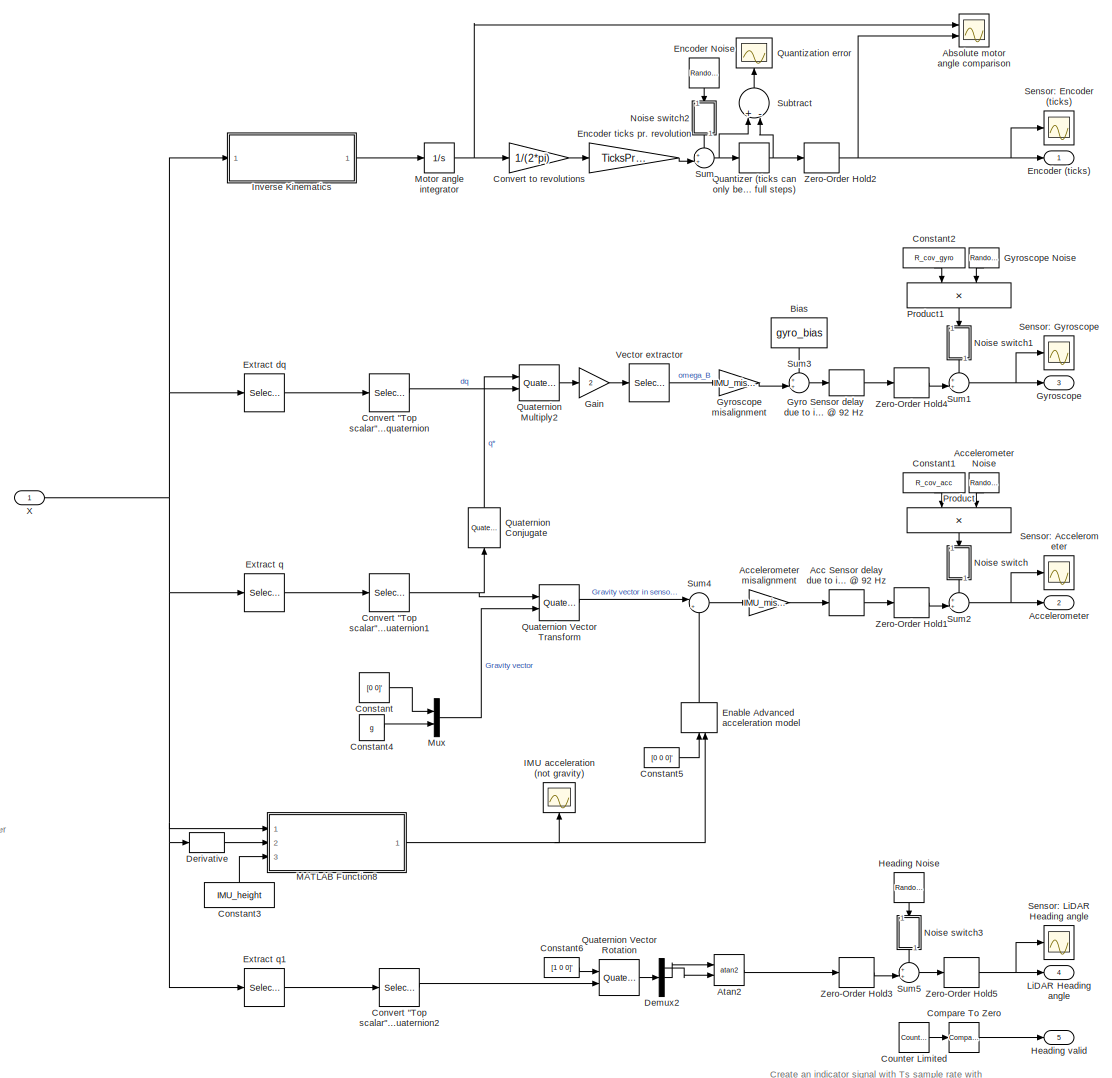
[diagram: root canvas - part 1/3, most of the canvas]
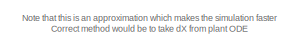
[diagram: root canvas - part 2/3, bottom left region]
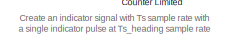
[diagram: root canvas - part 3/3, bottom right region]
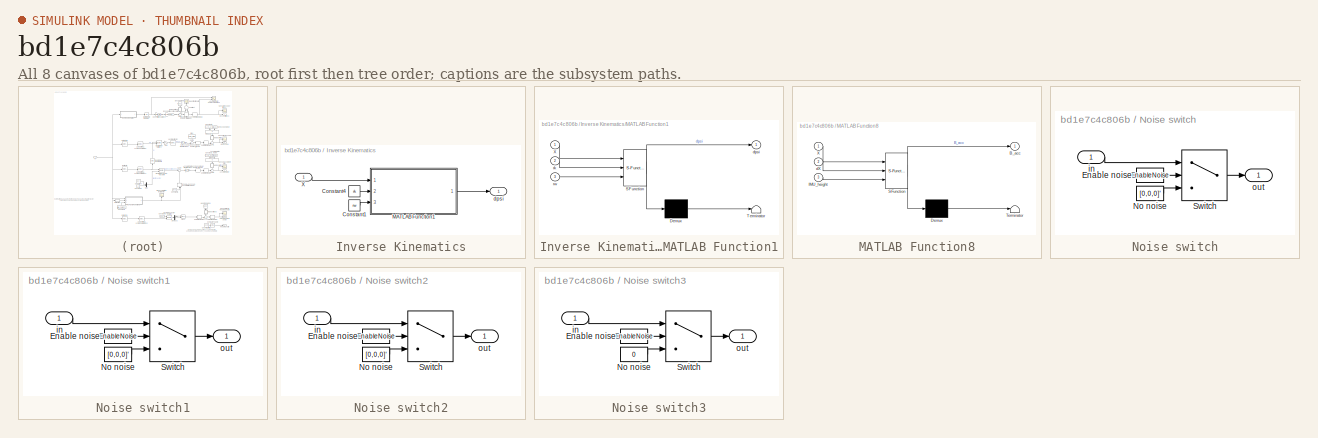
[diagram: thumbnail index - all 8 canvases of the model, root first then tree order]
MODEL slx_bd1e7c4c806b
KIND model
CONFIG AbsTol = auto
CONFIG EnableMultiTasking = off
CONFIG FixedStep = auto
CONFIG InitFcn = Constants_Kugle\nParameters_Simulation
CONFIG MaxStep = auto
CONFIG MinStep = auto
CONFIG PreLoadFcn = modelDir = fileparts(get_param(bdroot, 'FileName'));\naddpath(fullfile(modelDir,'../../Parameters'));\naddpath(fullfile(modelDir,'../../Model/generated'));\n\nConstants_Kugle\nParameters_Simulation
CONFIG RelTol = 1e-3
CONFIG SampleTimeConstraint = Unconstrained
CONFIG Solver = VariableStepAuto
CONFIG SolverName = VariableStepAuto
CONFIG StartTime = 0.0
CONFIG StopTime = 10.0
BLOCK [Scope] Absolute motor angle comparison
  Floating = off
  NumInputPorts = 2
  Ports = [2]
  ScopeSpecificationString = Simulink.scopes.TimeScopeBlockCfg('CurrentConfiguration', extmgr.ConfigurationSet(extmgr.Configuration('Core','General UI',true),extmgr.Configuration('Core','Source UI',true),extmgr.Configuration('Sources','WiredSimulink',true,'DataLoggingVariableName','ScopeData1'),extmgr.Configuration('Visuals','Time Domain',true,'SerializedDisplays',{struct('MinYLimReal','-79.7903','MaxYLimReal','66.0325','YLab...<+2559ch>
BLOCK [TransportDelay] Acc Sensor delay due to internal LPF @ 92 Hz
  Commented = through
  DelayTime = 7.8e-3
  InitialOutput = [0,0,g]'
  Ports = [1, 1]
BLOCK [Outport] Accelerometer
  IconDisplay = Port number
  Port = 2
BLOCK [RandomNumber] Accelerometer Noise
  Mean = [0,0,0]'
  SampleTime = Ts
  Seed = [31 20 16]'
  Variance = [1,1,1]'
BLOCK [Gain] Accelerometer misalignment
  Gain = IMU_misalignment
  Multiplication = Matrix(K*u)
  OutDataTypeStr = Inherit: Inherit via internal rule
  ParamDataTypeStr = Inherit: Inherit via internal rule
  SaturateOnIntegerOverflow = off
BLOCK [Trigonometry] Atan2
  Operator = atan2
  Ports = [2, 1]
BLOCK [Constant] Bias
  Value = gyro_bias
BLOCK [Reference] Compare To Zero  REF=simulink/Logic and Bit
Operations/Compare
To Zero
  Ports = [1, 1]
  SourceBlock = simulink/Logic and Bit\nOperations/Compare\nTo Zero
  SourceProductBaseCode = SL
  SourceProductName = Simulink
  SourceType = Compare To Zero
BLOCK [Constant] Constant
  Value = [0 0]'
BLOCK [Constant] Constant1
  Value = R_cov_acc
BLOCK [Constant] Constant2
  Value = R_cov_gyro
BLOCK [Constant] Constant3
  Value = IMU_height
BLOCK [Constant] Constant4
  Value = g
BLOCK [Constant] Constant5
  Value = [0 0 0]'
BLOCK [Constant] Constant6
  Value = [1 0 0]'
BLOCK [Selector] Convert "Top scalar" quaternion to "Bottom scalar" quaternion
  IndexOptions = Index vector (dialog)
  Indices = [2 3 4 1]
  InputPortWidth = 4
  OutputSizes = 1
  Ports = [1, 1]
BLOCK [Selector] Convert "Top scalar" quaternion to "Bottom scalar" quaternion1
  IndexOptions = Index vector (dialog)
  Indices = [2 3 4 1]
  InputPortWidth = 4
  OutputSizes = 1
  Ports = [1, 1]
BLOCK [Selector] Convert "Top scalar" quaternion to "Bottom scalar" quaternion2
  IndexOptions = Index vector (dialog)
  Indices = [2 3 4 1]
  InputPortWidth = 4
  OutputSizes = 1
  Ports = [1, 1]
BLOCK [Gain] Convert to revolutions
  Gain = 1/(2*pi)
  OutDataTypeStr = Inherit: Inherit via internal rule
  ParamDataTypeStr = Inherit: Inherit via internal rule
  SaturateOnIntegerOverflow = off
BLOCK [Reference] Counter Limited  REF=simulink/Sources/Counter
Limited
  Ports = [0, 1]
  SourceBlock = simulink/Sources/Counter\nLimited
  SourceProductBaseCode = SL
  SourceProductName = Simulink
  SourceType = Counter Limited
BLOCK [Demux] Demux2
  DisplayOption = bar
  Outputs = 3
  Ports = [1, 3]
BLOCK [Derivative] Derivative
BLOCK [ManualSwitch] Enable Advanced acceleration model
BLOCK [Outport] Encoder (ticks)
  IconDisplay = Port number
BLOCK [RandomNumber] Encoder Noise
  Mean = [0,0,0]'
  SampleTime = Ts
  Seed = [81 9 5]'
  Variance = [sensor_sigma2_encoder, sensor_sigma2_encoder, sensor_sigma2_encoder]'
BLOCK [Gain] Encoder ticks pr. revolution
  Gain = TicksPrRev
  OutDataTypeStr = Inherit: Inherit via internal rule
  ParamDataTypeStr = Inherit: Inherit via internal rule
  SaturateOnIntegerOverflow = off
BLOCK [Selector] Extract dq
  IndexOptions = Index vector (dialog)
  Indices = [9 10 11 12]
  InputPortWidth = 12
  OutputSizes = 1
  Ports = [1, 1]
BLOCK [Selector] Extract q
  IndexOptions = Index vector (dialog)
  Indices = [3 4 5 6]
  InputPortWidth = 12
  OutputSizes = 1
  Ports = [1, 1]
BLOCK [Selector] Extract q1
  IndexOptions = Index vector (dialog)
  Indices = [3 4 5 6]
  InputPortWidth = 12
  OutputSizes = 1
  Ports = [1, 1]
BLOCK [Gain] Gain
  Gain = 2
  OutDataTypeStr = Inherit: Inherit via internal rule
  ParamDataTypeStr = Inherit: Inherit via internal rule
  SaturateOnIntegerOverflow = off
BLOCK [TransportDelay] Gyro Sensor delay due to internal LPF @ 92 Hz
  Commented = through
  DelayTime = 3.9e-3
  Ports = [1, 1]
BLOCK [Outport] Gyroscope
  IconDisplay = Port number
  Port = 3
BLOCK [RandomNumber] Gyroscope Noise
  Mean = [0,0,0]'
  SampleTime = Ts
  Seed = [31 20 16]'
  Variance = [1,1,1]'
BLOCK [Gain] Gyroscope misalignment
  Gain = IMU_misalignment
  Multiplication = Matrix(K*u)
  OutDataTypeStr = Inherit: Inherit via internal rule
  ParamDataTypeStr = Inherit: Inherit via internal rule
  SaturateOnIntegerOverflow = off
BLOCK [RandomNumber] Heading Noise
  SampleTime = Ts_heading
  Seed = 19
  Variance = sensor_sigma2_heading
BLOCK [Outport] Heading valid
  IconDisplay = Port number
  Port = 5
BLOCK [Scope] IMU acceleration (not gravity)
  Floating = off
  NumInputPorts = 1
  Ports = [1]
  ScopeSpecificationString = Simulink.scopes.TimeScopeBlockCfg('CurrentConfiguration', extmgr.ConfigurationSet(extmgr.Configuration('Core','General UI',true),extmgr.Configuration('Core','Source UI',true),extmgr.Configuration('Sources','WiredSimulink',true,'DataLoggingVariableName','ScopeData3'),extmgr.Configuration('Visuals','Time Domain',true,'SerializedDisplays',{struct('MinYLimReal','-4.55293','MaxYLimReal','2.93324','YLab...<+1516ch>
BLOCK [SubSystem] Inverse Kinematics
  Ports = [1, 1]
  RequestExecContextInheritance = off
BLOCK [Constant] Inverse Kinematics/Constant1
  Value = rw
BLOCK [Constant] Inverse Kinematics/Constant4
  Value = rk
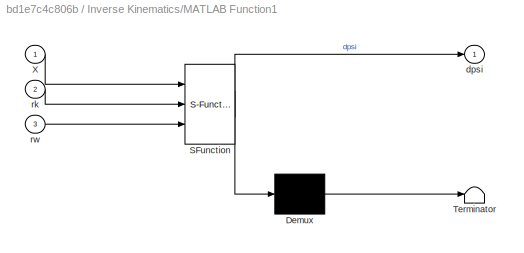
BLOCK [SubSystem] Inverse Kinematics/MATLAB Function1
  ErrorFcn = Stateflow.Translate.translate
  PermitHierarchicalResolution = ExplicitOnly
  Ports = [3, 1]
  RequestExecContextInheritance = off
  SFBlockType = MATLAB Function
  TreatAsAtomicUnit = on
BLOCK [Demux] Inverse Kinematics/MATLAB Function1/ Demux 
  Outputs = 1
  Ports = [1, 1]
BLOCK [S-Function] Inverse Kinematics/MATLAB Function1/ SFunction 
  EnableBusSupport = on
  FunctionName = sf_sfun
  PortCounts = [3 2]
  Ports = [3, 2]
  SFcnIsStateOwnerBlock = off
  SFunctionDeploymentMode = off
  Tag = Stateflow S-Function SensorModels 17
BLOCK [Terminator] Inverse Kinematics/MATLAB Function1/ Terminator 
BLOCK [Inport] Inverse Kinematics/MATLAB Function1/X
  IconDisplay = Port number
BLOCK [Outport] Inverse Kinematics/MATLAB Function1/dpsi
  IconDisplay = Port number
BLOCK [Inport] Inverse Kinematics/MATLAB Function1/rk
  IconDisplay = Port number
  Port = 2
BLOCK [Inport] Inverse Kinematics/MATLAB Function1/rw
  IconDisplay = Port number
  Port = 3
BLOCK [Inport] Inverse Kinematics/X
  IconDisplay = Port number
BLOCK [Outport] Inverse Kinematics/dpsi
  IconDisplay = Port number
BLOCK [Outport] LiDAR Heading angle
  IconDisplay = Port number
  Port = 4
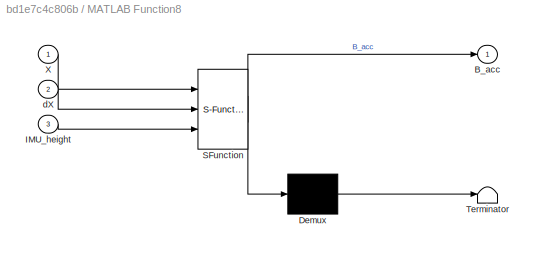
BLOCK [SubSystem] MATLAB Function8
  ErrorFcn = Stateflow.Translate.translate
  PermitHierarchicalResolution = ExplicitOnly
  Ports = [3, 1]
  RequestExecContextInheritance = off
  SFBlockType = MATLAB Function
  TreatAsAtomicUnit = on
BLOCK [Demux] MATLAB Function8/ Demux 
  Outputs = 1
  Ports = [1, 1]
BLOCK [S-Function] MATLAB Function8/ SFunction 
  EnableBusSupport = on
  FunctionName = sf_sfun
  PortCounts = [3 2]
  Ports = [3, 2]
  SFcnIsStateOwnerBlock = off
  SFunctionDeploymentMode = off
  Tag = Stateflow S-Function SensorModels 36
BLOCK [Terminator] MATLAB Function8/ Terminator 
BLOCK [Outport] MATLAB Function8/B_acc
  IconDisplay = Port number
BLOCK [Inport] MATLAB Function8/IMU_height
  IconDisplay = Port number
  Port = 3
BLOCK [Inport] MATLAB Function8/X
  IconDisplay = Port number
BLOCK [Inport] MATLAB Function8/dX
  IconDisplay = Port number
  Port = 2
BLOCK [Integrator] Motor angle integrator
  InitialCondition = [0 0 0]
  Ports = [1, 1]
BLOCK [Mux] Mux
  DisplayOption = bar
  Inputs = 2
  Ports = [2, 1]
BLOCK [SubSystem] Noise switch
  Ports = [1, 1]
  RequestExecContextInheritance = off
BLOCK [Constant] Noise switch/Enable noise
  Value = EnableNoise
BLOCK [Constant] Noise switch/No noise
  Value = [0,0,0]'
BLOCK [Switch] Noise switch/Switch
  Criteria = u2 > Threshold
  InputSameDT = off
  SaturateOnIntegerOverflow = off
BLOCK [Inport] Noise switch/in
  IconDisplay = Port number
BLOCK [Outport] Noise switch/out
  IconDisplay = Port number
BLOCK [SubSystem] Noise switch1
  Ports = [1, 1]
  RequestExecContextInheritance = off
BLOCK [Constant] Noise switch1/Enable noise
  Value = EnableNoise
BLOCK [Constant] Noise switch1/No noise
  Value = [0,0,0]'
BLOCK [Switch] Noise switch1/Switch
  Criteria = u2 > Threshold
  InputSameDT = off
  SaturateOnIntegerOverflow = off
BLOCK [Inport] Noise switch1/in
  IconDisplay = Port number
BLOCK [Outport] Noise switch1/out
  IconDisplay = Port number
BLOCK [SubSystem] Noise switch2
  Ports = [1, 1]
  RequestExecContextInheritance = off
BLOCK [Constant] Noise switch2/Enable noise
  Value = EnableNoise
BLOCK [Constant] Noise switch2/No noise
  Value = [0,0,0]'
BLOCK [Switch] Noise switch2/Switch
  Criteria = u2 > Threshold
  InputSameDT = off
  SaturateOnIntegerOverflow = off
BLOCK [Inport] Noise switch2/in
  IconDisplay = Port number
BLOCK [Outport] Noise switch2/out
  IconDisplay = Port number
BLOCK [SubSystem] Noise switch3
  Ports = [1, 1]
  RequestExecContextInheritance = off
BLOCK [Constant] Noise switch3/Enable noise
  Value = EnableNoise
BLOCK [Constant] Noise switch3/No noise
  Value = 0
BLOCK [Switch] Noise switch3/Switch
  Criteria = u2 > Threshold
  InputSameDT = off
  SaturateOnIntegerOverflow = off
BLOCK [Inport] Noise switch3/in
  IconDisplay = Port number
BLOCK [Outport] Noise switch3/out
  IconDisplay = Port number
BLOCK [Product] Product
  InputSameDT = off
  Multiplication = Matrix(*)
  OutDataTypeStr = Inherit: Inherit via internal rule
  Ports = [2, 1]
  RndMeth = Floor
  SaturateOnIntegerOverflow = off
BLOCK [Product] Product1
  InputSameDT = off
  Multiplication = Matrix(*)
  OutDataTypeStr = Inherit: Inherit via internal rule
  Ports = [2, 1]
  RndMeth = Floor
  SaturateOnIntegerOverflow = off
BLOCK [Scope] Quantization error
  Floating = off
  NumInputPorts = 1
  Ports = [1]
  ScopeSpecificationString = Simulink.scopes.TimeScopeBlockCfg('CurrentConfiguration', extmgr.ConfigurationSet(extmgr.Configuration('Core','General UI',true),extmgr.Configuration('Core','Source UI',true),extmgr.Configuration('Sources','WiredSimulink',true,'DataLoggingVariableName','ScopeData5'),extmgr.Configuration('Visuals','Time Domain',true,'SerializedDisplays',{struct('MinYLimReal','-0.50576','MaxYLimReal','0.51631','YLab...<+1494ch>
BLOCK [Quantizer] Quantizer (ticks can only be measured in full steps)
  QuantizationInterval = 1
BLOCK [Reference] Quaternion Conjugate  REF=qlib/Quaternion  (lib defined in mdl_ab4d631060dc, slx_f623738634e3)
Conjugate
  Ports = [1, 1]
  SourceBlock = qlib/Quaternion\nConjugate
  SourceType = Quaternion Conjugate
BLOCK [Reference] Quaternion Multiply2  REF=qlib/Quaternion  (lib defined in mdl_ab4d631060dc, slx_f623738634e3)
Multiply
  Ports = [2, 1]
  SourceBlock = qlib/Quaternion\nMultiply
  SourceType = Quaternion Multiply
BLOCK [Reference] Quaternion Vector Rotation  REF=qlib/Quaternion  (lib defined in mdl_ab4d631060dc, slx_f623738634e3)
Vector Rotation
  Ports = [2, 1]
  SourceBlock = qlib/Quaternion\nVector Rotation
  SourceType = Quaternion Vector Rotation
BLOCK [Reference] Quaternion Vector Transform  REF=qlib/Quaternion  (lib defined in mdl_ab4d631060dc, slx_f623738634e3)
Vector Transform
  Ports = [2, 1]
  SourceBlock = qlib/Quaternion\nVector Transform
  SourceType = Quaternion Vector Transform
BLOCK [Scope] Sensor: Accelerometer
  Floating = off
  NumInputPorts = 1
  Ports = [1]
  ScopeSpecificationString = Simulink.scopes.TimeScopeBlockCfg('CurrentConfiguration', extmgr.ConfigurationSet(extmgr.Configuration('Core','General UI',true),extmgr.Configuration('Core','Source UI',true),extmgr.Configuration('Sources','WiredSimulink',true,'DataLoggingVariableName','ScopeData3'),extmgr.Configuration('Visuals','Time Domain',true,'SerializedDisplays',{struct('MinYLimReal','-1.88646','MaxYLimReal','11.12071','YLa...<+1507ch>
BLOCK [Scope] Sensor: Encoder (ticks)
  Floating = off
  NumInputPorts = 1
  Ports = [1]
  ScopeSpecificationString = Simulink.scopes.TimeScopeBlockCfg('CurrentConfiguration', extmgr.ConfigurationSet(extmgr.Configuration('Core','General UI',true),extmgr.Configuration('Core','Source UI',true),extmgr.Configuration('Sources','WiredSimulink',true,'DataLoggingVariableName','ScopeData1'),extmgr.Configuration('Visuals','Time Domain',true,'SerializedDisplays',{struct('MinYLimReal','-2250541.625','MaxYLimReal','2175764.62...<+1573ch>
BLOCK [Scope] Sensor: Gyroscope
  Floating = off
  NumInputPorts = 1
  Ports = [1]
  ScopeSpecificationString = Simulink.scopes.TimeScopeBlockCfg('CurrentConfiguration', extmgr.ConfigurationSet(extmgr.Configuration('Core','General UI',true),extmgr.Configuration('Core','Source UI',true),extmgr.Configuration('Sources','WiredSimulink',true,'DataLoggingVariableName','ScopeData2'),extmgr.Configuration('Visuals','Time Domain',true,'SerializedDisplays',{struct('MinYLimReal','-4.05915','MaxYLimReal','2.15683','YLab...<+1532ch>
BLOCK [Scope] Sensor: LiDAR Heading angle
  Floating = off
  NumInputPorts = 1
  Ports = [1]
  ScopeSpecificationString = Simulink.scopes.TimeScopeBlockCfg('CurrentConfiguration', extmgr.ConfigurationSet(extmgr.Configuration('Core','General UI',true),extmgr.Configuration('Core','Source UI',true),extmgr.Configuration('Sources','WiredSimulink',true,'DataLoggingVariableName','ScopeData4'),extmgr.Configuration('Visuals','Time Domain',true,'SerializedDisplays',{struct('MinYLimReal','-0.50134','MaxYLimReal','0.07469','YLab...<+1514ch>
BLOCK [Sum] Subtract
  InputSameDT = off
  Inputs = +-
  OutDataTypeStr = Inherit: Inherit via internal rule
  Ports = [2, 1]
  SaturateOnIntegerOverflow = off
BLOCK [Sum] Sum
  IconShape = round
  InputSameDT = off
  Inputs = ++|
  OutDataTypeStr = Inherit: Inherit via internal rule
  Ports = [2, 1]
  SaturateOnIntegerOverflow = off
BLOCK [Sum] Sum1
  IconShape = round
  InputSameDT = off
  Inputs = ++|
  OutDataTypeStr = Inherit: Inherit via internal rule
  Ports = [2, 1]
  SaturateOnIntegerOverflow = off
BLOCK [Sum] Sum2
  IconShape = round
  InputSameDT = off
  Inputs = ++|
  OutDataTypeStr = Inherit: Inherit via internal rule
  Ports = [2, 1]
  SaturateOnIntegerOverflow = off
BLOCK [Sum] Sum3
  IconShape = round
  InputSameDT = off
  Inputs = ++|
  OutDataTypeStr = Inherit: Inherit via internal rule
  Ports = [2, 1]
  SaturateOnIntegerOverflow = off
BLOCK [Sum] Sum4
  IconShape = round
  InputSameDT = off
  Inputs = |++
  OutDataTypeStr = Inherit: Inherit via internal rule
  Ports = [2, 1]
  SaturateOnIntegerOverflow = off
BLOCK [Sum] Sum5
  IconShape = round
  InputSameDT = off
  Inputs = ++|
  OutDataTypeStr = Inherit: Inherit via internal rule
  Ports = [2, 1]
  SaturateOnIntegerOverflow = off
BLOCK [Selector] Vector extractor
  IndexOptions = Index vector (dialog)
  Indices = [1 2 3]
  InputPortWidth = 4
  OutputSizes = 1
  Ports = [1, 1]
BLOCK [Inport] X
  IconDisplay = Port number
BLOCK [ZeroOrderHold] Zero-Order Hold1
  SampleTime = Ts
BLOCK [ZeroOrderHold] Zero-Order Hold2
  SampleTime = Ts
BLOCK [ZeroOrderHold] Zero-Order Hold3
  SampleTime = Ts_heading
BLOCK [ZeroOrderHold] Zero-Order Hold4
  SampleTime = Ts
BLOCK [ZeroOrderHold] Zero-Order Hold5
  SampleTime = Ts
ANNOTATION (root): Create an indicator signal with Ts sample rate with a single indicator pulse at Ts_heading sample rate
ANNOTATION (root): Note that this is an approximation which makes the simulation faster Correct method would be to take dX from plant ODE
LINE Acc Sensor delay due to internal LPF @ 92 Hz:1 -> Zero-Order Hold1:1
LINE Accelerometer Noise:1 -> Product:2
LINE Accelerometer misalignment:1 -> Acc Sensor delay due to internal LPF @ 92 Hz:1
LINE Atan2:1 -> Zero-Order Hold3:1
LINE Bias:1 -> Sum3:1
LINE Compare To Zero:1 -> Heading valid:1
LINE Constant1:1 -> Product:1
LINE Constant2:1 -> Product1:1
LINE Constant3:1 -> MATLAB Function8:3
LINE Constant4:1 -> Mux:2
LINE Constant5:1 -> Enable Advanced acceleration model:1
LINE Constant6:1 -> Quaternion Vector Rotation:1
LINE Constant:1 -> Mux:1
NET Convert "Top scalar" quaternion to "Bottom scalar" quaternion1:1 -> Quaternion Conjugate:1, Quaternion Vector Transform:1
LINE Convert "Top scalar" quaternion to "Bottom scalar" quaternion2:1 -> Quaternion Vector Rotation:2
LINE Convert "Top scalar" quaternion to "Bottom scalar" quaternion:1 -> Quaternion Multiply2:2
LINE Convert to revolutions:1 -> Encoder ticks pr. revolution:1
LINE Counter Limited:1 -> Compare To Zero:1
LINE Demux2:1 -> Atan2:2
LINE Demux2:2 -> Atan2:1
LINE Derivative:1 -> MATLAB Function8:2
LINE Enable Advanced acceleration model:1 -> Sum4:2
LINE Encoder Noise:1 -> Noise switch2:1
LINE Encoder ticks pr. revolution:1 -> Sum:2
LINE Extract dq:1 -> Convert "Top scalar" quaternion to "Bottom scalar" quaternion:1
LINE Extract q1:1 -> Convert "Top scalar" quaternion to "Bottom scalar" quaternion2:1
LINE Extract q:1 -> Convert "Top scalar" quaternion to "Bottom scalar" quaternion1:1
LINE Gain:1 -> Vector extractor:1
LINE Gyro Sensor delay due to internal LPF @ 92 Hz:1 -> Zero-Order Hold4:1
LINE Gyroscope Noise:1 -> Product1:2
LINE Gyroscope misalignment:1 -> Sum3:2
LINE Heading Noise:1 -> Noise switch3:1
LINE Inverse Kinematics/Constant1:1 -> Inverse Kinematics/MATLAB Function1:3
LINE Inverse Kinematics/Constant4:1 -> Inverse Kinematics/MATLAB Function1:2
LINE Inverse Kinematics/MATLAB Function1:1 -> Inverse Kinematics/dpsi:1
LINE Inverse Kinematics/X:1 -> Inverse Kinematics/MATLAB Function1:1
LINE Inverse Kinematics:1 -> Motor angle integrator:1
NET MATLAB Function8:1 -> Enable Advanced acceleration model:2, IMU acceleration (not gravity):1
NET Motor angle integrator:1 -> Absolute motor angle comparison:1, Convert to revolutions:1
LINE Mux:1 -> Quaternion Vector Transform:2
LINE Noise switch/Enable noise:1 -> Noise switch/Switch:2
LINE Noise switch/No noise:1 -> Noise switch/Switch:3
LINE Noise switch/Switch:1 -> Noise switch/out:1
LINE Noise switch/in:1 -> Noise switch/Switch:1
LINE Noise switch1/Enable noise:1 -> Noise switch1/Switch:2
LINE Noise switch1/No noise:1 -> Noise switch1/Switch:3
LINE Noise switch1/Switch:1 -> Noise switch1/out:1
LINE Noise switch1/in:1 -> Noise switch1/Switch:1
LINE Noise switch1:1 -> Sum1:1
LINE Noise switch2/Enable noise:1 -> Noise switch2/Switch:2
LINE Noise switch2/No noise:1 -> Noise switch2/Switch:3
LINE Noise switch2/Switch:1 -> Noise switch2/out:1
LINE Noise switch2/in:1 -> Noise switch2/Switch:1
LINE Noise switch2:1 -> Sum:1
LINE Noise switch3/Enable noise:1 -> Noise switch3/Switch:2
LINE Noise switch3/No noise:1 -> Noise switch3/Switch:3
LINE Noise switch3/Switch:1 -> Noise switch3/out:1
LINE Noise switch3/in:1 -> Noise switch3/Switch:1
LINE Noise switch3:1 -> Sum5:1
LINE Noise switch:1 -> Sum2:1
LINE Product1:1 -> Noise switch1:1
LINE Product:1 -> Noise switch:1
NET Quantizer (ticks can only be measured in full steps):1 -> Subtract:2, Zero-Order Hold2:1
LINE Quaternion Conjugate:1 -> Quaternion Multiply2:1
LINE Quaternion Multiply2:1 -> Gain:1
LINE Quaternion Vector Rotation:1 -> Demux2:1
LINE Quaternion Vector Transform:1 -> Sum4:1
LINE Subtract:1 -> Quantization error:1
NET Sum1:1 -> Gyroscope:1, Sensor: Gyroscope:1
NET Sum2:1 -> Accelerometer:1, Sensor: Accelerometer:1
LINE Sum3:1 -> Gyro Sensor delay due to internal LPF @ 92 Hz:1
LINE Sum4:1 -> Accelerometer misalignment:1
LINE Sum5:1 -> Zero-Order Hold5:1
NET Sum:1 -> Quantizer (ticks can only be measured in full steps):1, Subtract:1
LINE Vector extractor:1 -> Gyroscope misalignment:1
NET X:1 -> Derivative:1, Extract dq:1, Extract q1:1, Extract q:1, Inverse Kinematics:1, MATLAB Function8:1
LINE Zero-Order Hold1:1 -> Sum2:2
NET Zero-Order Hold2:1 -> Absolute motor angle comparison:2, Encoder (ticks):1, Sensor: Encoder (ticks):1
LINE Zero-Order Hold3:1 -> Sum5:2
LINE Zero-Order Hold4:1 -> Sum1:2
NET Zero-Order Hold5:1 -> LiDAR Heading angle:1, Sensor: LiDAR Heading angle:1
note: NET lines group one-source signal fan-out (src -> all destinations, sorted); 1:1 wires keep LINE
CHART Inverse Kinematics/MATLAB Function1 states=1 transitions=1
  STATE_LABEL 'eML_blk_kernel()'
  STATE_LABEL 'SCRIPT:\nfunction dpsi = InverseKinematics(X,rk,rw)\n\nx = X(1);\ny = X(2);\nq1 = X(3);\nq2 = X(4);\nq3 = X(5);\nq4 = X(6);\n\ndx = X(7);\ndy = X(8);\ndq1 = X(9);\ndq2 = X(10);\ndq3 = X(11);\ndq4 = X(12);\n\ndpsi = InverseKinematics(dq1,dq2,dq3,dq4,dx,dy,q1,q2,q3,q4,rk,rw);'
CHART MATLAB Function8 states=1 transitions=1
  STATE_LABEL 'eML_blk_kernel()'
  STATE_LABEL 'SCRIPT:\nfunction B_acc = IMU_Acceleration(X,dX,IMU_height)\n\nPhi = @(q)[q(1) -q(2) -q(3) -q(4);     % for q o p = Phi(q) * p\n          q(2) q(1)  -q(4) q(3);\n          q(3) q(4)  q(1)  -q(2);\n          q(4) -q(3) q(2)  q(1)];           \nGamma = @(p)[p(1) -p(2) -p(3) -p(4);   % for q o p = Gamma(p) * q\n             p(2) p(1) p(4) -p(3);\n             p(3) -p(4) p(1) p(2);\n             p(4) p(3) -p(2)...<+862ch>'
